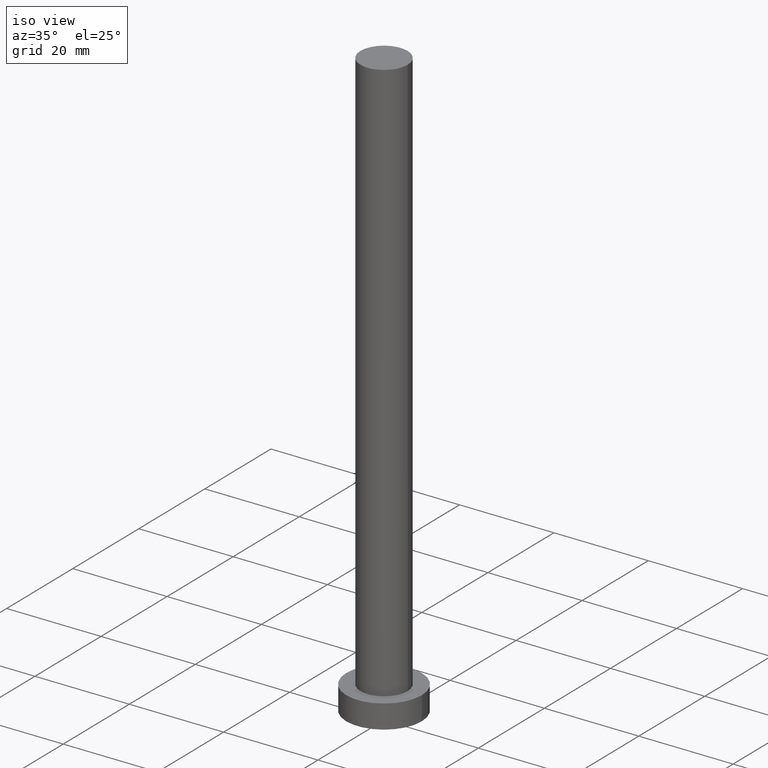
[diagram: clean part render]
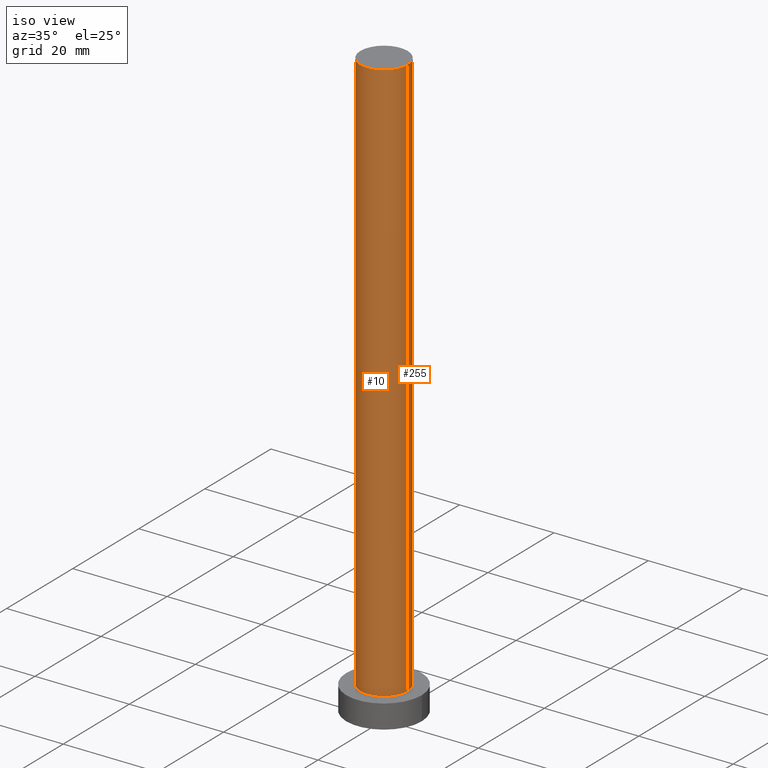
[diagram: same view with one multi-face feature highlighted, each face labeled with its STEP entity id]
A machine part, iso view. The highlighted faces form ONE feature: a constant-radius fillet chain: 2 tangent blend faces with common blend radius 5 mm. The faces share edges in the B-rep.
Their STEP definitions:
[1] entity #255 (Cylinder):
#9 = VERTEX_POINT ( 'NONE', #42 ) ;
#11 = DIRECTION ( 'NONE',  ( -0.000000000000000000, -0.000000000000000000, -1.000000000000000000 ) ) ;
#12 = CARTESIAN_POINT ( 'NONE',  ( -5.000000000000000888, 0.000000000000000000, 125.0000000000000000 ) ) ;
#15 = DIRECTION ( 'NONE',  ( 1.000000000000000000, 0.000000000000000000, 0.000000000000000000 ) ) ;
#19 = AXIS2_PLACEMENT_3D ( 'NONE', #176, #108, #70 ) ;
#20 = EDGE_CURVE ( 'NONE', #24, #77, #35, .T. ) ;
#24 = VERTEX_POINT ( 'NONE', #227 ) ;
#28 = DIRECTION ( 'NONE',  ( 0.000000000000000000, 0.000000000000000000, 1.000000000000000000 ) ) ;
#31 = CARTESIAN_POINT ( 'NONE',  ( 0.000000000000000000, 0.000000000000000000, 125.0000000000000000 ) ) ;
#35 = CIRCLE ( 'NONE', #249, 5.000000000000000888 ) ;
#42 = CARTESIAN_POINT ( 'NONE',  ( -5.000000000000000888, 0.000000000000000000, 125.0000000000000000 ) ) ;
#48 = LINE ( 'NONE', #103, #68 ) ;
#53 = AXIS2_PLACEMENT_3D ( 'NONE', #31, #28, #107 ) ;
#68 = VECTOR ( 'NONE', #202, 1000.000000000000000 ) ;
#70 = DIRECTION ( 'NONE',  ( -1.000000000000000000, 0.000000000000000000, 0.000000000000000000 ) ) ;
#74 = EDGE_CURVE ( 'NONE', #9, #77, #125, .T. ) ;
#77 = VERTEX_POINT ( 'NONE', #146 ) ;
#79 = EDGE_LOOP ( 'NONE', ( #206, #123, #169, #182 ) ) ;
#92 = EDGE_CURVE ( 'NONE', #160, #9, #134, .T. ) ;
#103 = CARTESIAN_POINT ( 'NONE',  ( 5.000000000000000888, 6.123233995736767268E-16, 125.0000000000000000 ) ) ;
#107 = DIRECTION ( 'NONE',  ( 1.000000000000000000, 0.000000000000000000, 0.000000000000000000 ) ) ;
#108 = DIRECTION ( 'NONE',  ( -0.000000000000000000, -0.000000000000000000, -1.000000000000000000 ) ) ;
#122 = EDGE_CURVE ( 'NONE', #160, #24, #48, .T. ) ;
#123 = ORIENTED_EDGE ( 'NONE', *, *, #122, .T. ) ;
#125 = LINE ( 'NONE', #12, #162 ) ;
#134 = CIRCLE ( 'NONE', #53, 5.000000000000000888 ) ;
#146 = CARTESIAN_POINT ( 'NONE',  ( -5.000000000000000888, 0.000000000000000000, 5.000000000000000000 ) ) ;
#153 = CARTESIAN_POINT ( 'NONE',  ( 5.000000000000000888, 6.123233995736767268E-16, 125.0000000000000000 ) ) ;
#157 = FACE_OUTER_BOUND ( 'NONE', #79, .T. ) ;
#160 = VERTEX_POINT ( 'NONE', #153 ) ;
#162 = VECTOR ( 'NONE', #11, 1000.000000000000000 ) ;
#164 = CARTESIAN_POINT ( 'NONE',  ( 0.000000000000000000, 0.000000000000000000, 5.000000000000000000 ) ) ;
#169 = ORIENTED_EDGE ( 'NONE', *, *, #20, .T. ) ;
#172 = CYLINDRICAL_SURFACE ( 'NONE', #19, 5.000000000000000888 ) ;
#176 = CARTESIAN_POINT ( 'NONE',  ( 0.000000000000000000, 0.000000000000000000, 125.0000000000000000 ) ) ;
#182 = ORIENTED_EDGE ( 'NONE', *, *, #74, .F. ) ;
#189 = DIRECTION ( 'NONE',  ( 0.000000000000000000, 0.000000000000000000, 1.000000000000000000 ) ) ;
#202 = DIRECTION ( 'NONE',  ( -0.000000000000000000, -0.000000000000000000, -1.000000000000000000 ) ) ;
#206 = ORIENTED_EDGE ( 'NONE', *, *, #92, .F. ) ;
#227 = CARTESIAN_POINT ( 'NONE',  ( 5.000000000000000888, 6.123233995736767268E-16, 5.000000000000000000 ) ) ;
#249 = AXIS2_PLACEMENT_3D ( 'NONE', #164, #189, #15 ) ;
#255 = ADVANCED_FACE ( 'NONE', ( #157 ), #172, .T. ) ;
[2] entity #10 (Cylinder):
#9 = VERTEX_POINT ( 'NONE', #42 ) ;
#10 = ADVANCED_FACE ( 'NONE', ( #251 ), #64, .T. ) ;
#11 = DIRECTION ( 'NONE',  ( -0.000000000000000000, -0.000000000000000000, -1.000000000000000000 ) ) ;
#12 = CARTESIAN_POINT ( 'NONE',  ( -5.000000000000000888, 0.000000000000000000, 125.0000000000000000 ) ) ;
#24 = VERTEX_POINT ( 'NONE', #227 ) ;
#42 = CARTESIAN_POINT ( 'NONE',  ( -5.000000000000000888, 0.000000000000000000, 125.0000000000000000 ) ) ;
#45 = DIRECTION ( 'NONE',  ( -1.000000000000000000, 0.000000000000000000, 0.000000000000000000 ) ) ;
#46 = DIRECTION ( 'NONE',  ( -0.000000000000000000, -0.000000000000000000, -1.000000000000000000 ) ) ;
#48 = LINE ( 'NONE', #103, #68 ) ;
#51 = CARTESIAN_POINT ( 'NONE',  ( 0.000000000000000000, 0.000000000000000000, 125.0000000000000000 ) ) ;
#60 = ORIENTED_EDGE ( 'NONE', *, *, #229, .F. ) ;
#62 = AXIS2_PLACEMENT_3D ( 'NONE', #105, #46, #45 ) ;
#64 = CYLINDRICAL_SURFACE ( 'NONE', #62, 5.000000000000000888 ) ;
#68 = VECTOR ( 'NONE', #202, 1000.000000000000000 ) ;
#74 = EDGE_CURVE ( 'NONE', #9, #77, #125, .T. ) ;
#77 = VERTEX_POINT ( 'NONE', #146 ) ;
#84 = CIRCLE ( 'NONE', #154, 5.000000000000000888 ) ;
#93 = DIRECTION ( 'NONE',  ( 0.000000000000000000, 0.000000000000000000, 1.000000000000000000 ) ) ;
#103 = CARTESIAN_POINT ( 'NONE',  ( 5.000000000000000888, 6.123233995736767268E-16, 125.0000000000000000 ) ) ;
#105 = CARTESIAN_POINT ( 'NONE',  ( 0.000000000000000000, 0.000000000000000000, 125.0000000000000000 ) ) ;
#109 = EDGE_CURVE ( 'NONE', #77, #24, #84, .T. ) ;
#122 = EDGE_CURVE ( 'NONE', #160, #24, #48, .T. ) ;
#125 = LINE ( 'NONE', #12, #162 ) ;
#146 = CARTESIAN_POINT ( 'NONE',  ( -5.000000000000000888, 0.000000000000000000, 5.000000000000000000 ) ) ;
#147 = DIRECTION ( 'NONE',  ( 0.000000000000000000, 0.000000000000000000, 1.000000000000000000 ) ) ;
#149 = DIRECTION ( 'NONE',  ( 1.000000000000000000, 0.000000000000000000, 0.000000000000000000 ) ) ;
#153 = CARTESIAN_POINT ( 'NONE',  ( 5.000000000000000888, 6.123233995736767268E-16, 125.0000000000000000 ) ) ;
#154 = AXIS2_PLACEMENT_3D ( 'NONE', #188, #147, #149 ) ;
#155 = DIRECTION ( 'NONE',  ( 1.000000000000000000, 0.000000000000000000, 0.000000000000000000 ) ) ;
#160 = VERTEX_POINT ( 'NONE', #153 ) ;
#162 = VECTOR ( 'NONE', #11, 1000.000000000000000 ) ;
#168 = AXIS2_PLACEMENT_3D ( 'NONE', #51, #93, #155 ) ;
#180 = ORIENTED_EDGE ( 'NONE', *, *, #109, .T. ) ;
#185 = EDGE_LOOP ( 'NONE', ( #253, #60, #201, #180 ) ) ;
#188 = CARTESIAN_POINT ( 'NONE',  ( 0.000000000000000000, 0.000000000000000000, 5.000000000000000000 ) ) ;
#201 = ORIENTED_EDGE ( 'NONE', *, *, #74, .T. ) ;
#202 = DIRECTION ( 'NONE',  ( -0.000000000000000000, -0.000000000000000000, -1.000000000000000000 ) ) ;
#227 = CARTESIAN_POINT ( 'NONE',  ( 5.000000000000000888, 6.123233995736767268E-16, 5.000000000000000000 ) ) ;
#229 = EDGE_CURVE ( 'NONE', #9, #160, #245, .T. ) ;
#245 = CIRCLE ( 'NONE', #168, 5.000000000000000888 ) ;
#251 = FACE_OUTER_BOUND ( 'NONE', #185, .T. ) ;
#253 = ORIENTED_EDGE ( 'NONE', *, *, #122, .F. ) ;